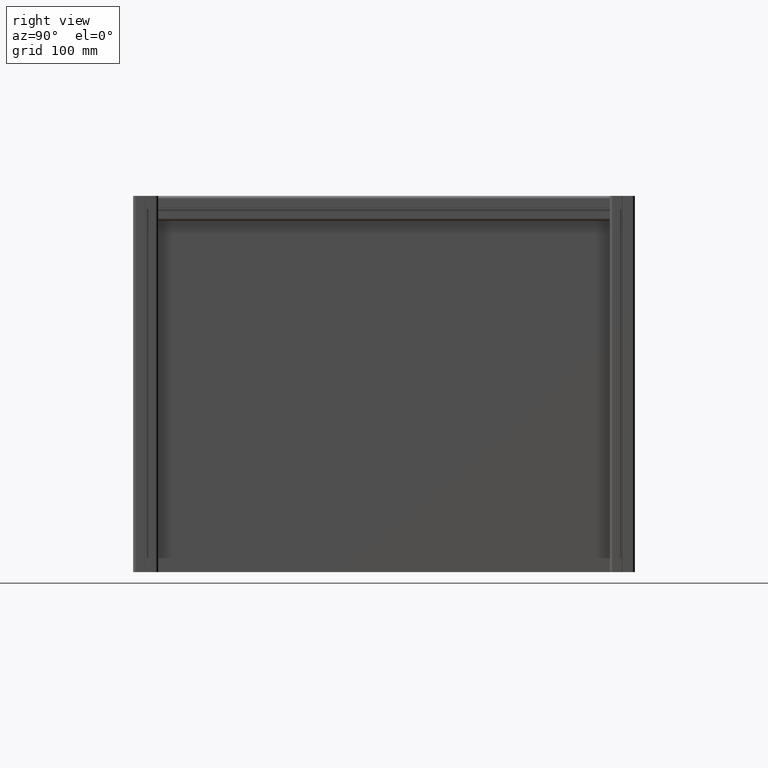
[diagram: clean part render]
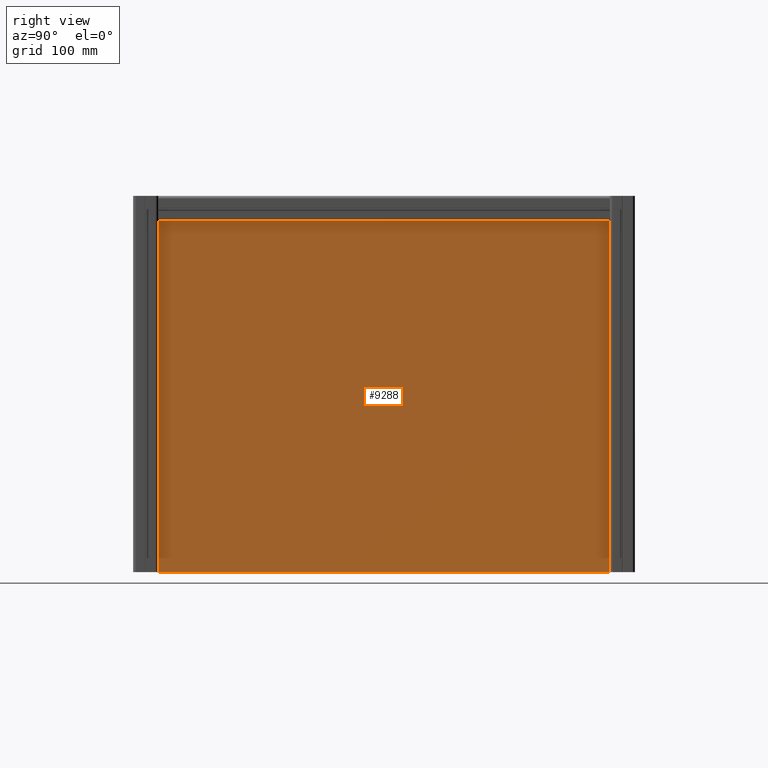
[diagram: same view with one face highlighted and labeled with its STEP entity id]
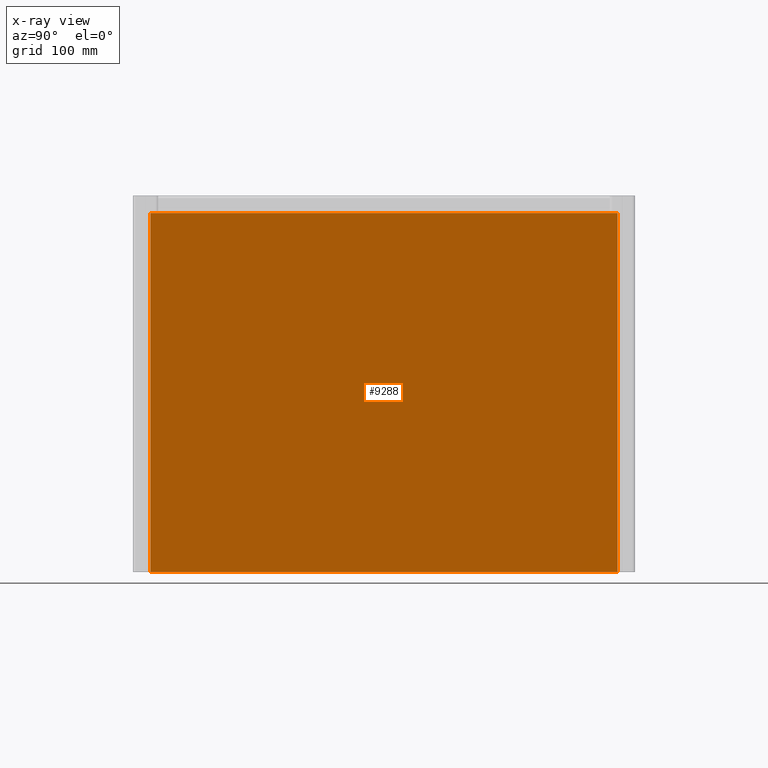
[diagram: x-ray of the same camera — body ghosted, the highlighted face saturated]
A machine part, right view. The second image highlights one B-rep face of the part: STEP entity #9288.
The next image is the same camera in x-ray: the body ghosted, the highlighted face saturated — about 0% of this face is hidden behind the body in this view.
In plain terms, the highlighted planar face has unit normal (1, -0, 0).
Its self-contained STEP definition (entity closure, byte-faithful):
#56 = DIRECTION ( 'NONE',  ( -1.000000000000000000, -0.0000000000000000000, -0.0000000000000000000 ) ) ;
#205 = LINE ( 'NONE', #5140, #574 ) ;
#215 = CARTESIAN_POINT ( 'NONE',  ( -28.32696245733812290, -486.9269624573377087, 0.0000000000000000000 ) ) ;
#282 = ORIENTED_EDGE ( 'NONE', *, *, #4812, .T. ) ;
#574 = VECTOR ( 'NONE', #5303, 1000.000000000000000 ) ;
#837 = VECTOR ( 'NONE', #56, 1000.000000000000000 ) ;
#1011 = ORIENTED_EDGE ( 'NONE', *, *, #9954, .T. ) ;
#1521 = CARTESIAN_POINT ( 'NONE',  ( -28.32696245733820462, 257.8730375426622459, 0.0000000000000000000 ) ) ;
#1813 = CARTESIAN_POINT ( 'NONE',  ( -600.7269624573382316, 257.8730375426622459, 0.0000000000000000000 ) ) ;
#2988 = DIRECTION ( 'NONE',  ( -0.0000000000000000000, 0.0000000000000000000, 1.000000000000000000 ) ) ;
#3265 = CARTESIAN_POINT ( 'NONE',  ( -600.7269624573382316, -486.9269624573377087, 0.0000000000000000000 ) ) ;
#3823 = CARTESIAN_POINT ( 'NONE',  ( -600.7269624573382316, 257.8730375426622459, 0.0000000000000000000 ) ) ;
#3974 = VECTOR ( 'NONE', #13924, 1000.000000000000000 ) ;
#4812 = EDGE_CURVE ( 'NONE', #12637, #14575, #10836, .T. ) ;
#4950 = VERTEX_POINT ( 'NONE', #215 ) ;
#5140 = CARTESIAN_POINT ( 'NONE',  ( -600.7269624573382316, -486.9269624573377087, 0.0000000000000000000 ) ) ;
#5180 = LINE ( 'NONE', #3823, #3974 ) ;
#5301 = EDGE_CURVE ( 'NONE', #4950, #12637, #15406, .T. ) ;
#5303 = DIRECTION ( 'NONE',  ( 1.000000000000000000, 0.0000000000000000000, 0.0000000000000000000 ) ) ;
#5435 = DIRECTION ( 'NONE',  ( -1.117974313196653482E-16, 1.000000000000000000, -0.0000000000000000000 ) ) ;
#5765 = AXIS2_PLACEMENT_3D ( 'NONE', #8066, #2988, #15446 ) ;
#6659 = CARTESIAN_POINT ( 'NONE',  ( -28.32696245733820462, 257.8730375426622459, 0.0000000000000000000 ) ) ;
#7175 = ORIENTED_EDGE ( 'NONE', *, *, #11848, .T. ) ;
#7830 = PLANE ( 'NONE',  #5765 ) ;
#8066 = CARTESIAN_POINT ( 'NONE',  ( 0.0000000000000000000, 0.0000000000000000000, 0.0000000000000000000 ) ) ;
#8481 = CARTESIAN_POINT ( 'NONE',  ( -600.7269624573382316, 257.8730375426622459, 0.0000000000000000000 ) ) ;
#9124 = FACE_OUTER_BOUND ( 'NONE', #11745, .T. ) ;
#9288 = ADVANCED_FACE ( 'NONE', ( #9124 ), #7830, .T. ) ;
#9954 = EDGE_CURVE ( 'NONE', #14575, #15794, #5180, .T. ) ;
#10836 = LINE ( 'NONE', #8481, #837 ) ;
#11277 = VECTOR ( 'NONE', #5435, 1000.000000000000000 ) ;
#11745 = EDGE_LOOP ( 'NONE', ( #1011, #7175, #15258, #282 ) ) ;
#11848 = EDGE_CURVE ( 'NONE', #15794, #4950, #205, .T. ) ;
#12637 = VERTEX_POINT ( 'NONE', #1521 ) ;
#13924 = DIRECTION ( 'NONE',  ( 0.0000000000000000000, -1.000000000000000000, 0.0000000000000000000 ) ) ;
#14575 = VERTEX_POINT ( 'NONE', #1813 ) ;
#15258 = ORIENTED_EDGE ( 'NONE', *, *, #5301, .T. ) ;
#15406 = LINE ( 'NONE', #6659, #11277 ) ;
#15446 = DIRECTION ( 'NONE',  ( 1.000000000000000000, 0.0000000000000000000, 0.0000000000000000000 ) ) ;
#15794 = VERTEX_POINT ( 'NONE', #3265 ) ;